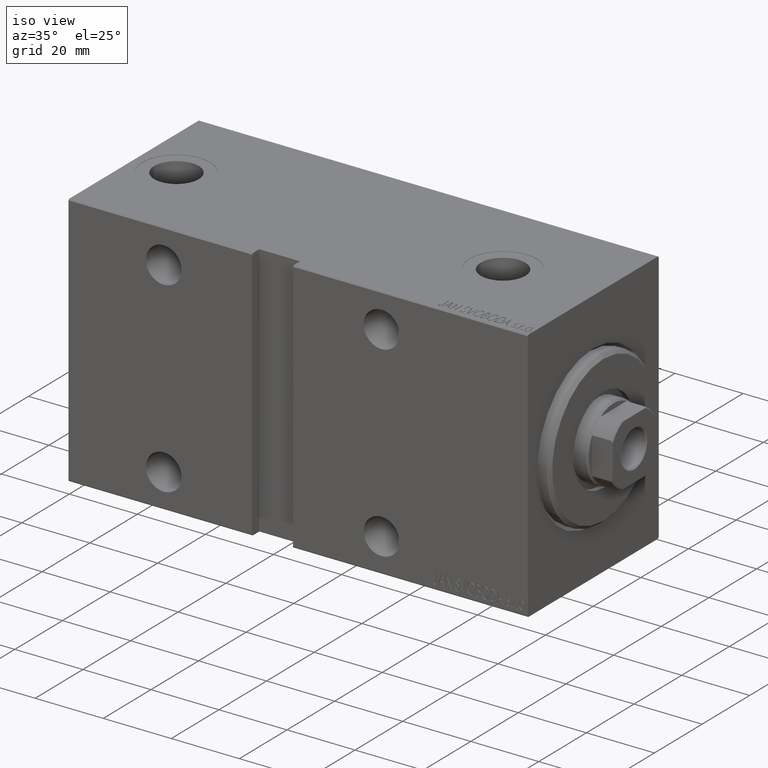
[diagram: clean part render]
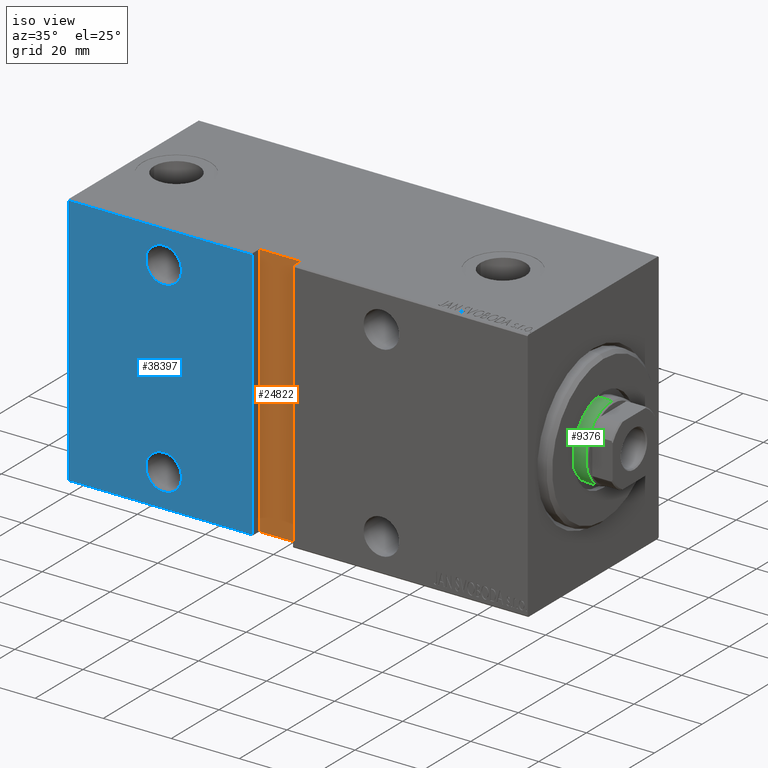
[diagram: same view with three faces highlighted in distinct colors, each labeled with its STEP entity id]
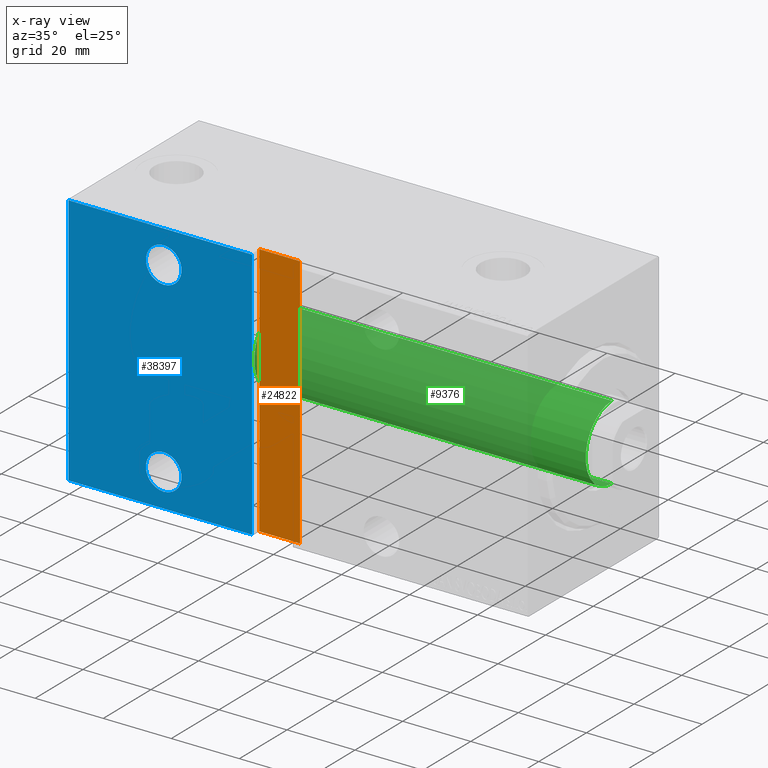
[diagram: x-ray of the same camera — body ghosted, the three highlighted faces saturated]
A machine part, iso view with three faces highlighted in distinct colors.
The next image is the same camera in x-ray (body ghosted, the three faces saturated) — at least one of them is partly hidden behind the body in this view.
Their STEP definitions:

[orange] entity #24822 — the highlighted planar face has unit normal (-0, 1, -0).
#1319 = DIRECTION ( 'NONE',  ( 0.000000000000000000, -1.000000000000000000, -9.251858538542959255E-17 ) ) ;
#2966 = DIRECTION ( 'NONE',  ( 0.000000000000000000, -9.251858538542959255E-17, 1.000000000000000000 ) ) ;
#5223 = LINE ( 'NONE', #36548, #24360 ) ;
#5963 = DIRECTION ( 'NONE',  ( 1.850371707708591851E-16, 9.251858538542959255E-17, -1.000000000000000000 ) ) ;
#6130 = EDGE_CURVE ( 'NONE', #8220, #9935, #5223, .T. ) ;
#6328 = LINE ( 'NONE', #19994, #14304 ) ;
#8220 = VERTEX_POINT ( 'NONE', #22384 ) ;
#8632 = EDGE_CURVE ( 'NONE', #17157, #40569, #15607, .T. ) ;
#9935 = VERTEX_POINT ( 'NONE', #38036 ) ;
#11844 = CARTESIAN_POINT ( 'NONE',  ( 0.000000000000000000, 24.50000000000000000, 2.165775976068010180E-15 ) ) ;
#12342 = ORIENTED_EDGE ( 'NONE', *, *, #32560, .T. ) ;
#12576 = AXIS2_PLACEMENT_3D ( 'NONE', #11844, #1319, #38055 ) ;
#14304 = VECTOR ( 'NONE', #2966, 1000.000000000000000 ) ;
#15515 = VECTOR ( 'NONE', #5963, 1000.000000000000000 ) ;
#15607 = LINE ( 'NONE', #23203, #20134 ) ;
#17157 = VERTEX_POINT ( 'NONE', #22037 ) ;
#19994 = CARTESIAN_POINT ( 'NONE',  ( 69.00000000000000000, 24.50000000000000355, -37.50000000000009237 ) ) ;
#20134 = VECTOR ( 'NONE', #29481, 1000.000000000000000 ) ;
#22037 = CARTESIAN_POINT ( 'NONE',  ( 69.00000000000000000, 24.49999999999999645, 37.50000000000000711 ) ) ;
#22384 = CARTESIAN_POINT ( 'NONE',  ( 81.00000000000001421, 24.50000000000000355, -37.50000000000000711 ) ) ;
#22566 = LINE ( 'NONE', #29498, #15515 ) ;
#23203 = CARTESIAN_POINT ( 'NONE',  ( 81.00000000000000000, 24.49999999999999645, 37.50000000000000711 ) ) ;
#23793 = ORIENTED_EDGE ( 'NONE', *, *, #6130, .T. ) ;
#24360 = VECTOR ( 'NONE', #29840, 1000.000000000000000 ) ;
#24822 = ADVANCED_FACE ( 'NONE', ( #42502 ), #31781, .F. ) ;
#24979 = ORIENTED_EDGE ( 'NONE', *, *, #8632, .T. ) ;
#28232 = ORIENTED_EDGE ( 'NONE', *, *, #44219, .T. ) ;
#29481 = DIRECTION ( 'NONE',  ( 1.000000000000000000, -0.000000000000000000, -0.000000000000000000 ) ) ;
#29498 = CARTESIAN_POINT ( 'NONE',  ( 81.00000000000001421, 24.50000000000000355, -37.50000000000009237 ) ) ;
#29840 = DIRECTION ( 'NONE',  ( -1.000000000000000000, 0.000000000000000000, 0.000000000000000000 ) ) ;
#31781 = PLANE ( 'NONE',  #12576 ) ;
#32560 = EDGE_CURVE ( 'NONE', #40569, #8220, #22566, .T. ) ;
#33240 = EDGE_LOOP ( 'NONE', ( #28232, #24979, #12342, #23793 ) ) ;
#35279 = CARTESIAN_POINT ( 'NONE',  ( 81.00000000000000000, 24.49999999999999645, 37.50000000000000711 ) ) ;
#36548 = CARTESIAN_POINT ( 'NONE',  ( 81.00000000000001421, 24.50000000000000355, -37.50000000000009237 ) ) ;
#38036 = CARTESIAN_POINT ( 'NONE',  ( 69.00000000000000000, 24.50000000000000355, -37.50000000000009237 ) ) ;
#38055 = DIRECTION ( 'NONE',  ( 0.000000000000000000, 9.251858538542959255E-17, -1.000000000000000000 ) ) ;
#40569 = VERTEX_POINT ( 'NONE', #35279 ) ;
#42502 = FACE_OUTER_BOUND ( 'NONE', #33240, .T. ) ;
#44219 = EDGE_CURVE ( 'NONE', #9935, #17157, #6328, .T. ) ;

[blue] entity #38397 — the highlighted planar face has unit normal (-0, 1, -0).
#80 = DIRECTION ( 'NONE',  ( 0.000000000000000000, -1.000000000000000000, -9.251858538542970348E-17 ) ) ;
#425 = LINE ( 'NONE', #21267, #10788 ) ;
#1077 = LINE ( 'NONE', #28617, #26287 ) ;
#1291 = VERTEX_POINT ( 'NONE', #35589 ) ;
#1547 = DIRECTION ( 'NONE',  ( 0.000000000000000000, -1.000000000000000000, -9.251858538542970348E-17 ) ) ;
#1759 = CARTESIAN_POINT ( 'NONE',  ( 107.0000000000000142, 27.49999999999999645, 32.74999999999999289 ) ) ;
#2738 = CARTESIAN_POINT ( 'NONE',  ( 81.00000000000001421, 27.50000000000000355, -37.19999999999999574 ) ) ;
#3683 = ORIENTED_EDGE ( 'NONE', *, *, #6717, .T. ) ;
#3791 = DIRECTION ( 'NONE',  ( -1.000000000000000000, 0.000000000000000000, 0.000000000000000000 ) ) ;
#4941 = VECTOR ( 'NONE', #27305, 1000.000000000000000 ) ;
#5451 = CARTESIAN_POINT ( 'NONE',  ( 107.0000000000000142, 27.49999999999999645, 27.49999999999999289 ) ) ;
#5658 = AXIS2_PLACEMENT_3D ( 'NONE', #12565, #26228, #6281 ) ;
#5879 = ORIENTED_EDGE ( 'NONE', *, *, #34415, .F. ) ;
#5972 = CARTESIAN_POINT ( 'NONE',  ( 135.0000000000000000, 27.50000000000000355, -37.19999999999999574 ) ) ;
#6281 = DIRECTION ( 'NONE',  ( 0.000000000000000000, 9.251858538542970348E-17, -1.000000000000000000 ) ) ;
#6425 = AXIS2_PLACEMENT_3D ( 'NONE', #29412, #35462, #11513 ) ;
#6717 = EDGE_CURVE ( 'NONE', #10237, #24369, #425, .T. ) ;
#7023 = DIRECTION ( 'NONE',  ( 0.000000000000000000, 0.000000000000000000, -1.000000000000000000 ) ) ;
#7235 = CIRCLE ( 'NONE', #17984, 5.250000000000004441 ) ;
#8131 = EDGE_CURVE ( 'NONE', #23294, #13108, #18701, .T. ) ;
#8688 = ORIENTED_EDGE ( 'NONE', *, *, #19294, .T. ) ;
#10237 = VERTEX_POINT ( 'NONE', #5972 ) ;
#10788 = VECTOR ( 'NONE', #3791, 1000.000000000000000 ) ;
#11513 = DIRECTION ( 'NONE',  ( 0.000000000000000000, 0.000000000000000000, -1.000000000000000000 ) ) ;
#11927 = EDGE_LOOP ( 'NONE', ( #8688, #26840 ) ) ;
#12565 = CARTESIAN_POINT ( 'NONE',  ( 135.0000000000000000, 27.50000000000000355, -37.50000000000000711 ) ) ;
#13108 = VERTEX_POINT ( 'NONE', #33140 ) ;
#13932 = VERTEX_POINT ( 'NONE', #26007 ) ;
#14311 = LINE ( 'NONE', #31766, #4941 ) ;
#14414 = AXIS2_PLACEMENT_3D ( 'NONE', #15655, #1547, #28434 ) ;
#15655 = CARTESIAN_POINT ( 'NONE',  ( 107.0000000000000142, 27.50000000000000355, -27.50000000000000711 ) ) ;
#16396 = CARTESIAN_POINT ( 'NONE',  ( 107.0000000000000142, 27.50000000000000355, -32.75000000000000711 ) ) ;
#17984 = AXIS2_PLACEMENT_3D ( 'NONE', #5451, #43045, #32329 ) ;
#18084 = EDGE_LOOP ( 'NONE', ( #27276, #29046 ) ) ;
#18701 = CIRCLE ( 'NONE', #14414, 5.250000000000000888 ) ;
#19294 = EDGE_CURVE ( 'NONE', #13108, #23294, #25348, .T. ) ;
#21100 = DIRECTION ( 'NONE',  ( 1.000000000000000000, 0.000000000000000000, 0.000000000000000000 ) ) ;
#21267 = CARTESIAN_POINT ( 'NONE',  ( 135.0000000000000000, 27.50000000000000355, -37.19999999999999574 ) ) ;
#23294 = VERTEX_POINT ( 'NONE', #16396 ) ;
#23315 = FACE_BOUND ( 'NONE', #11927, .T. ) ;
#24369 = VERTEX_POINT ( 'NONE', #2738 ) ;
#24460 = CARTESIAN_POINT ( 'NONE',  ( 135.0000000000000000, 27.49999999999999645, 37.20000000000002416 ) ) ;
#24993 = VERTEX_POINT ( 'NONE', #1759 ) ;
#25348 = CIRCLE ( 'NONE', #42484, 5.250000000000000888 ) ;
#25753 = CIRCLE ( 'NONE', #6425, 5.250000000000004441 ) ;
#26007 = CARTESIAN_POINT ( 'NONE',  ( 135.0000000000000000, 27.49999999999999645, 37.20000000000002416 ) ) ;
#26228 = DIRECTION ( 'NONE',  ( 0.000000000000000000, -1.000000000000000000, -9.251858538542970348E-17 ) ) ;
#26287 = VECTOR ( 'NONE', #32413, 1000.000000000000000 ) ;
#26840 = ORIENTED_EDGE ( 'NONE', *, *, #8131, .T. ) ;
#27246 = VECTOR ( 'NONE', #21100, 1000.000000000000000 ) ;
#27276 = ORIENTED_EDGE ( 'NONE', *, *, #43923, .T. ) ;
#27305 = DIRECTION ( 'NONE',  ( 1.850371707708591851E-16, 9.251858538542959255E-17, -1.000000000000000000 ) ) ;
#28434 = DIRECTION ( 'NONE',  ( 0.000000000000000000, 0.000000000000000000, -1.000000000000000000 ) ) ;
#28617 = CARTESIAN_POINT ( 'NONE',  ( 135.0000000000000000, 27.50000000000000355, -37.50000000000000711 ) ) ;
#29046 = ORIENTED_EDGE ( 'NONE', *, *, #43955, .T. ) ;
#29140 = ORIENTED_EDGE ( 'NONE', *, *, #35415, .F. ) ;
#29412 = CARTESIAN_POINT ( 'NONE',  ( 107.0000000000000142, 27.49999999999999645, 27.49999999999999289 ) ) ;
#29588 = FACE_OUTER_BOUND ( 'NONE', #36224, .T. ) ;
#31072 = VERTEX_POINT ( 'NONE', #35471 ) ;
#31766 = CARTESIAN_POINT ( 'NONE',  ( 81.00000000000001421, 27.50000000000000355, -37.50000000000009237 ) ) ;
#32329 = DIRECTION ( 'NONE',  ( 0.000000000000000000, 0.000000000000000000, -1.000000000000000000 ) ) ;
#32413 = DIRECTION ( 'NONE',  ( 0.000000000000000000, -9.251858538542970348E-17, 1.000000000000000000 ) ) ;
#33140 = CARTESIAN_POINT ( 'NONE',  ( 107.0000000000000142, 27.50000000000000355, -22.25000000000000355 ) ) ;
#34415 = EDGE_CURVE ( 'NONE', #10237, #13932, #1077, .T. ) ;
#35415 = EDGE_CURVE ( 'NONE', #31072, #24369, #14311, .T. ) ;
#35462 = DIRECTION ( 'NONE',  ( 0.000000000000000000, -1.000000000000000000, -9.251858538542970348E-17 ) ) ;
#35471 = CARTESIAN_POINT ( 'NONE',  ( 81.00000000000000000, 27.49999999999999645, 37.20000000000003126 ) ) ;
#35589 = CARTESIAN_POINT ( 'NONE',  ( 107.0000000000000142, 27.49999999999999645, 22.24999999999998934 ) ) ;
#36224 = EDGE_LOOP ( 'NONE', ( #5879, #3683, #29140, #41896 ) ) ;
#36960 = FACE_BOUND ( 'NONE', #18084, .T. ) ;
#38358 = CARTESIAN_POINT ( 'NONE',  ( 107.0000000000000142, 27.50000000000000355, -27.50000000000000711 ) ) ;
#38397 = ADVANCED_FACE ( 'NONE', ( #23315, #36960, #29588 ), #44107, .F. ) ;
#41437 = LINE ( 'NONE', #24460, #27246 ) ;
#41896 = ORIENTED_EDGE ( 'NONE', *, *, #43222, .T. ) ;
#42484 = AXIS2_PLACEMENT_3D ( 'NONE', #38358, #80, #7023 ) ;
#43045 = DIRECTION ( 'NONE',  ( 0.000000000000000000, -1.000000000000000000, -9.251858538542970348E-17 ) ) ;
#43222 = EDGE_CURVE ( 'NONE', #31072, #13932, #41437, .T. ) ;
#43923 = EDGE_CURVE ( 'NONE', #24993, #1291, #7235, .T. ) ;
#43955 = EDGE_CURVE ( 'NONE', #1291, #24993, #25753, .T. ) ;
#44107 = PLANE ( 'NONE',  #5658 ) ;

[green] entity #9376 — the highlighted cylindrical surface (partial cylindrical patch) has radius 11 mm, axis along (-1, -0, 0).
#256 = CARTESIAN_POINT ( 'NONE',  ( 0.000000000000000000, 0.000000000000000000, 130.4999999999999716 ) ) ;
#1070 = CIRCLE ( 'NONE', #16804, 11.00000000000000000 ) ;
#2219 = EDGE_CURVE ( 'NONE', #43423, #25789, #5424, .T. ) ;
#3047 = VECTOR ( 'NONE', #33681, 1000.000000000000000 ) ;
#5385 = CARTESIAN_POINT ( 'NONE',  ( -11.00000000000000000, 0.000000000000000000, 33.00000000000000000 ) ) ;
#5424 = CIRCLE ( 'NONE', #23307, 11.00000000000000000 ) ;
#8145 = LINE ( 'NONE', #21824, #9766 ) ;
#8873 = ORIENTED_EDGE ( 'NONE', *, *, #2219, .T. ) ;
#9316 = VERTEX_POINT ( 'NONE', #23322 ) ;
#9376 = ADVANCED_FACE ( 'NONE', ( #35760 ), #42899, .T. ) ;
#9766 = VECTOR ( 'NONE', #35017, 1000.000000000000000 ) ;
#11598 = AXIS2_PLACEMENT_3D ( 'NONE', #28830, #25035, #25914 ) ;
#16310 = EDGE_CURVE ( 'NONE', #26265, #25789, #30114, .T. ) ;
#16804 = AXIS2_PLACEMENT_3D ( 'NONE', #256, #37653, #24012 ) ;
#21824 = CARTESIAN_POINT ( 'NONE',  ( -11.00000000000000000, 0.000000000000000000, 131.0000000000000000 ) ) ;
#22966 = EDGE_CURVE ( 'NONE', #26265, #9316, #1070, .T. ) ;
#23307 = AXIS2_PLACEMENT_3D ( 'NONE', #30975, #41255, #37690 ) ;
#23322 = CARTESIAN_POINT ( 'NONE',  ( -11.00000000000000000, 0.000000000000000000, 130.4999999999999716 ) ) ;
#24012 = DIRECTION ( 'NONE',  ( 1.000000000000000000, 0.000000000000000000, 0.000000000000000000 ) ) ;
#24431 = EDGE_LOOP ( 'NONE', ( #29410, #29198, #29841, #8873 ) ) ;
#25035 = DIRECTION ( 'NONE',  ( -0.000000000000000000, -0.000000000000000000, -1.000000000000000000 ) ) ;
#25789 = VERTEX_POINT ( 'NONE', #32881 ) ;
#25914 = DIRECTION ( 'NONE',  ( -1.000000000000000000, 0.000000000000000000, 0.000000000000000000 ) ) ;
#26265 = VERTEX_POINT ( 'NONE', #28535 ) ;
#26295 = EDGE_CURVE ( 'NONE', #9316, #43423, #8145, .T. ) ;
#28535 = CARTESIAN_POINT ( 'NONE',  ( 11.00000000000000000, 1.347111479062088405E-15, 130.4999999999999716 ) ) ;
#28830 = CARTESIAN_POINT ( 'NONE',  ( 0.000000000000000000, 0.000000000000000000, 131.0000000000000000 ) ) ;
#29198 = ORIENTED_EDGE ( 'NONE', *, *, #22966, .T. ) ;
#29410 = ORIENTED_EDGE ( 'NONE', *, *, #16310, .F. ) ;
#29841 = ORIENTED_EDGE ( 'NONE', *, *, #26295, .T. ) ;
#30114 = LINE ( 'NONE', #43753, #3047 ) ;
#30975 = CARTESIAN_POINT ( 'NONE',  ( 0.000000000000000000, 0.000000000000000000, 33.00000000000000000 ) ) ;
#32881 = CARTESIAN_POINT ( 'NONE',  ( 11.00000000000000000, 1.347111479062088405E-15, 33.00000000000000000 ) ) ;
#33681 = DIRECTION ( 'NONE',  ( -0.000000000000000000, -0.000000000000000000, -1.000000000000000000 ) ) ;
#35017 = DIRECTION ( 'NONE',  ( -0.000000000000000000, -0.000000000000000000, -1.000000000000000000 ) ) ;
#35760 = FACE_OUTER_BOUND ( 'NONE', #24431, .T. ) ;
#37653 = DIRECTION ( 'NONE',  ( 0.000000000000000000, 0.000000000000000000, -1.000000000000000000 ) ) ;
#37690 = DIRECTION ( 'NONE',  ( 1.000000000000000000, 0.000000000000000000, 0.000000000000000000 ) ) ;
#41255 = DIRECTION ( 'NONE',  ( 0.000000000000000000, 0.000000000000000000, 1.000000000000000000 ) ) ;
#42899 = CYLINDRICAL_SURFACE ( 'NONE', #11598, 11.00000000000000000 ) ;
#43423 = VERTEX_POINT ( 'NONE', #5385 ) ;
#43753 = CARTESIAN_POINT ( 'NONE',  ( 11.00000000000000000, 1.347111479062088405E-15, 131.0000000000000000 ) ) ;